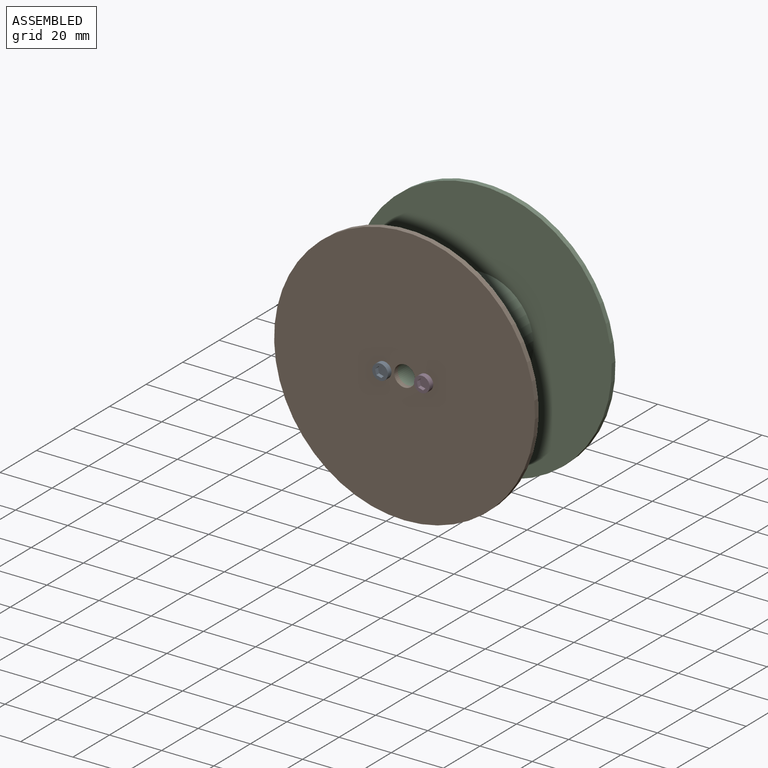
[diagram: assembled view]
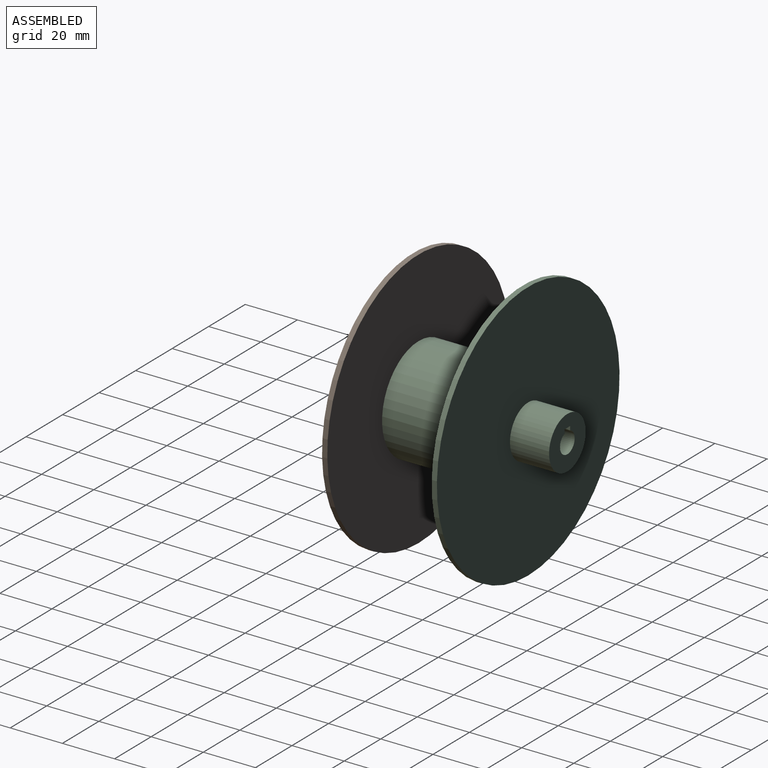
[diagram: assembled view, second angle]
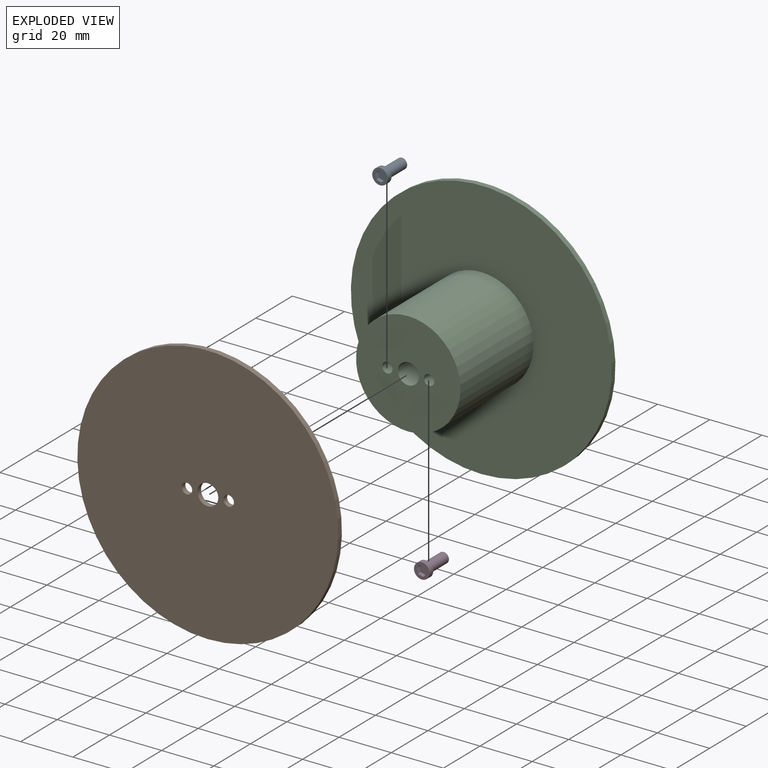
[diagram: exploded view]
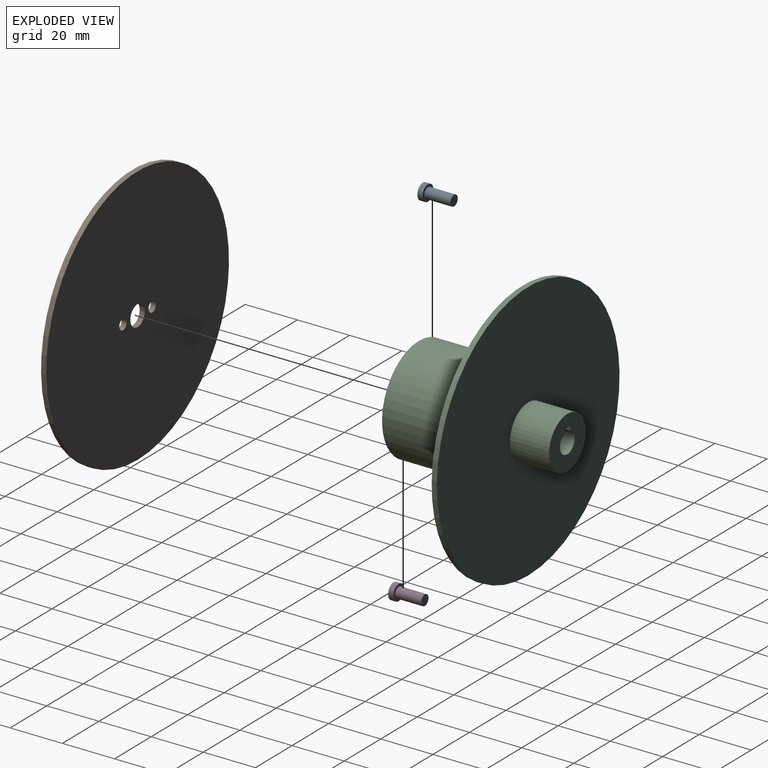
[diagram: exploded view, second angle]
ASSEMBLY  parts=4 mates=3
PART A: 12 faces, bbox 6x6x12 mm
  f0: plane 6x6mm, normal (0,0,1), area 17.9mm2, adj f4,f5,f6,f7,f8,f9,f10
  f1: plane 4x4mm, normal (0,0,-1), area 12.6mm2, adj f2
  f2: cylinder r=2mm len=10mm, axis (0,0,1), area 125.7mm2, adj f1,f3
  f3: plane 6x6mm, normal (0,0,-1), area 15.7mm2, adj f2,f4
  f4: cylinder r=3mm len=6mm, axis (0,0,1), area 37.7mm2, adj f0,f3
  f5: plane 1.5x1.44mm, normal (-0.7,0.72,0), area 3mm2, adj f0,f6,f10,f11
  f6: plane 1.94x1.5mm, normal (-0.97,-0.24,0), area 3mm2, adj f0,f5,f7,f11
  f7: plane 1.92x1.5mm, normal (-0.27,-0.96,0), area 3mm2, adj f0,f6,f8,f11
  f8: plane 1.5x1.44mm, normal (0.7,-0.72,0), area 3mm2, adj f0,f7,f9,f11
  f9: plane 1.94x1.5mm, normal (0.97,0.24,0), area 3mm2, adj f0,f8,f10,f11
  f10: plane 1.92x1.5mm, normal (0.27,0.96,0), area 3mm2, adj f0,f5,f9,f11
  f11: plane 3.88x3.84mm, normal (0,0,1), area 10.4mm2, adj f5,f6,f7,f8,f9,f10
PART B: 6 faces, bbox 100x2x100 mm
  f0: cylinder r=4mm len=8mm, axis (0,1,0), area 50.3mm2, adj f2,f3
  f1: cylinder r=50mm len=100mm, axis (0,1,0), area 628.3mm2, adj f2,f3
  f2: plane 100x100mm, normal (0,-1,0), area 7778.6mm2, adj f0,f1,f4,f5
  f3: plane 100x100mm, normal (0,1,0), area 7778.6mm2, adj f0,f1,f4,f5
  f4: cylinder r=2mm len=4mm, axis (0,-1,0), area 25.1mm2, adj f2,f3
  f5: cylinder r=2mm len=4mm, axis (0,-1,0), area 25.1mm2, adj f2,f3
PART C: 16 faces, bbox 100x57x100 mm
  f0: plane 20x20mm, normal (0,1,0), area 260mm2, adj f6,f7,f9,f10,f11
  f1: cylinder r=50mm len=100mm, axis (0,1,0), area 628.3mm2, adj f2,f3
  f2: plane 100x100mm, normal (0,-1,0), area 6597.3mm2, adj f1,f4
  f3: plane 100x100mm, normal (0,1,0), area 7539.8mm2, adj f1,f6
  f4: cylinder r=20mm len=40mm, axis (0,1,0), area 5026.5mm2, adj f2,f5
  f5: plane 40x40mm, normal (0,-1,0), area 1181.2mm2, adj f4,f7,f12,f14
  f6: cylinder r=10mm len=20mm, axis (0,-1,0), area 942.5mm2, adj f0,f3
  f7: cylinder r=4mm len=57mm, axis (0,-1,0), area 1380.3mm2, adj f0,f5,f8,f10,f11
  f8: plane 3x1.49mm, normal (0,1,0), area 3.9mm2, adj f7,f9,f10,f11
  f9: plane 17x3mm, normal (0,0,-1), area 51mm2, adj f0,f8,f10,f11
  f10: plane 17x1.49mm, normal (-1,0,0), area 25.4mm2, adj f0,f7,f8,f9
  f11: plane 17x1.49mm, normal (1,0,0), area 25.4mm2, adj f0,f7,f8,f9
  f12: cylinder r=2mm len=12mm, axis (0,-1,0), area 150.8mm2, adj f5,f13
  f13: plane 4x4mm, normal (0,-1,0), area 12.6mm2, adj f12
  f14: cylinder r=2mm len=12mm, axis (0,-1,0), area 150.8mm2, adj f5,f15
  f15: plane 4x4mm, normal (0,-1,0), area 12.6mm2, adj f14
PART D: same geometry as A
PLACE A rot(axis=(1,0,0),90deg) t=(0.95,78.78,94.28)mm
PLACE B t=(8.95,70.78,94.28)mm
PLACE C t=(8.95,112.78,94.28)mm fixed
PLACE D rot(axis=(1,0,0),90deg) t=(16.95,78.78,94.28)mm
MATE fastened C.f7 <-> B.f1  axis (0,-1,0) through (8.95,70.78,94.28)mm
MATE fastened A.f2 <-> B.f4  axis (0,1,0) through (0.95,68.78,94.28)mm
MATE fastened D.f2 <-> B.f5  axis (0,1,0) through (16.95,68.78,94.28)mm
